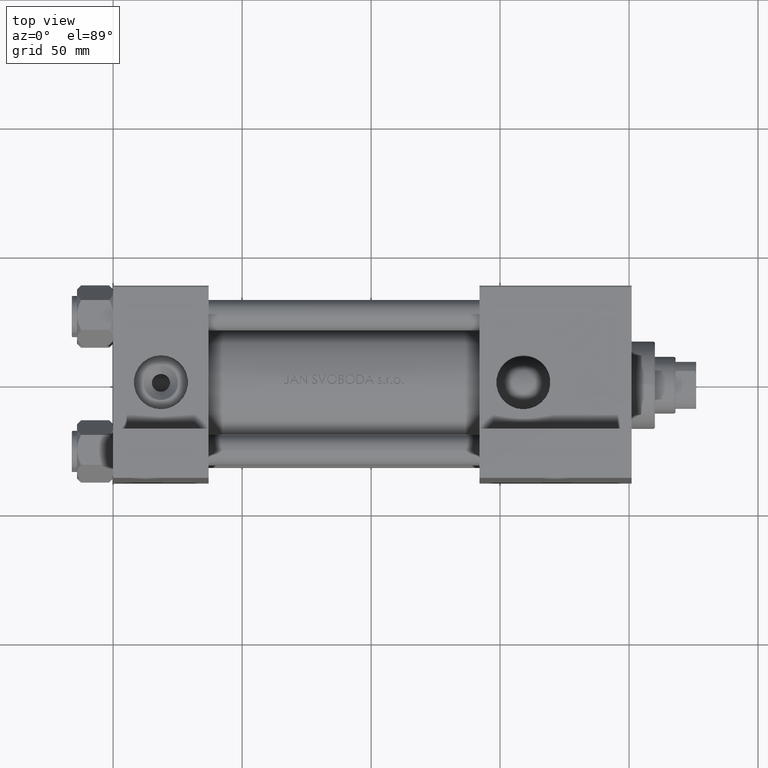
[diagram: clean part render]
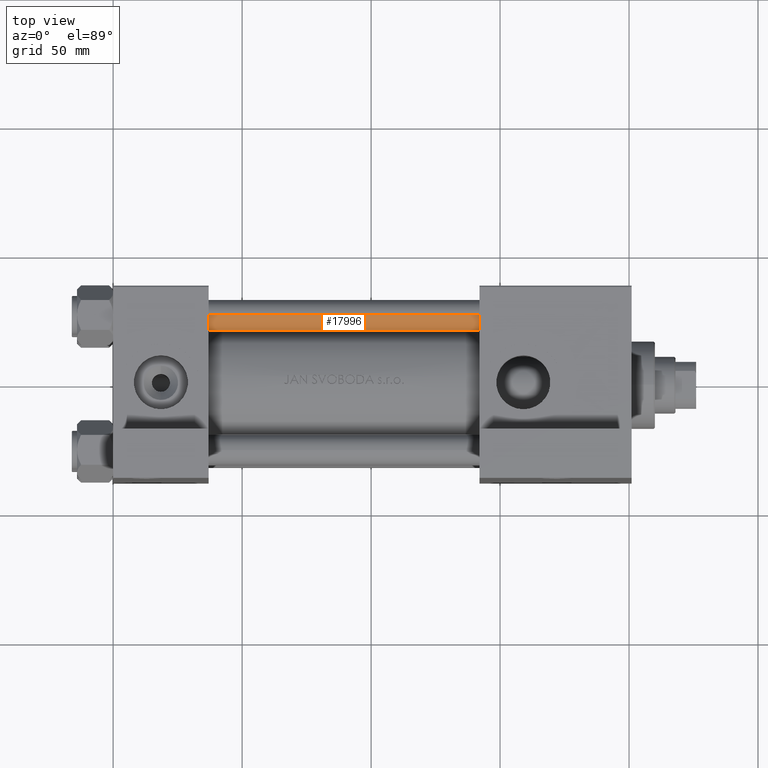
[diagram: same view with one face highlighted and labeled with its STEP entity id]
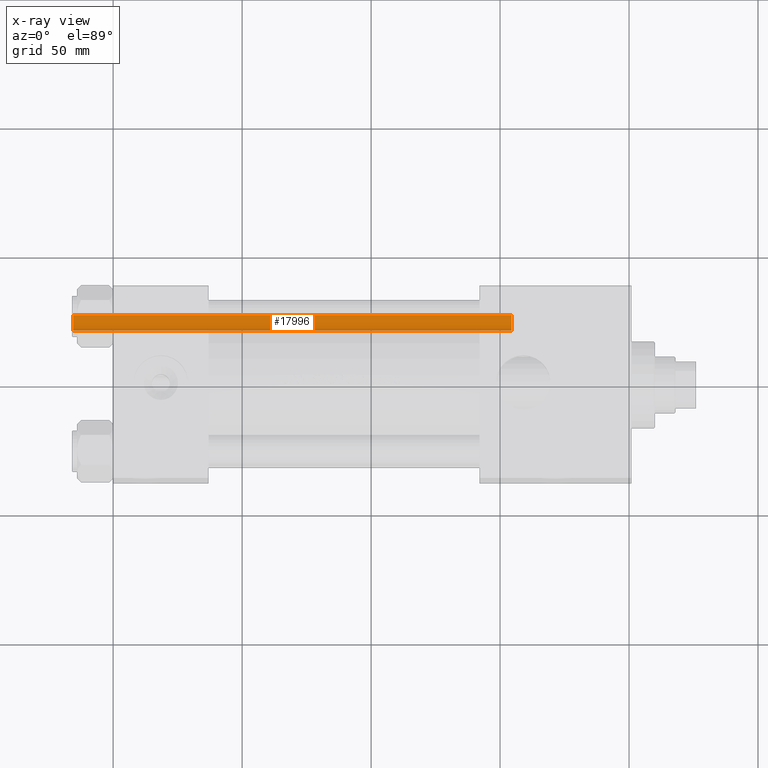
[diagram: x-ray of the same camera — body ghosted, the highlighted face saturated]
A machine part, top view. The second image highlights one B-rep face of the part: STEP entity #17996.
The next image is the same camera in x-ray: the body ghosted, the highlighted face saturated — about 0% of this face is hidden behind the body in this view.
In plain terms, the highlighted cylindrical surface (edge-blend (fillet) strip) has radius 6 mm, axis along (-1, -0, -0).
Its self-contained STEP definition (entity closure, byte-faithful):
#296 = CARTESIAN_POINT ( 'NONE',  ( -6.000000000000000888, 0.000000000000000000, 0.5000000000000281997 ) ) ;
#1954 = VECTOR ( 'NONE', #8274, 1000.000000000000000 ) ;
#2972 = DIRECTION ( 'NONE',  ( 1.000000000000000000, 0.000000000000000000, 0.000000000000000000 ) ) ;
#4338 = VERTEX_POINT ( 'NONE', #11097 ) ;
#4881 = CYLINDRICAL_SURFACE ( 'NONE', #46101, 6.000000000000000888 ) ;
#4886 = ORIENTED_EDGE ( 'NONE', *, *, #24863, .T. ) ;
#5665 = EDGE_CURVE ( 'NONE', #12287, #40471, #27192, .T. ) ;
#8274 = DIRECTION ( 'NONE',  ( -0.000000000000000000, -0.000000000000000000, -1.000000000000000000 ) ) ;
#8770 = CARTESIAN_POINT ( 'NONE',  ( -6.000000000000000888, 0.000000000000000000, 171.0000000000000000 ) ) ;
#10432 = DIRECTION ( 'NONE',  ( -0.000000000000000000, -0.000000000000000000, 1.000000000000000000 ) ) ;
#11097 = CARTESIAN_POINT ( 'NONE',  ( 6.000000000000000888, 7.347880794884120722E-16, 170.5000000000000000 ) ) ;
#11647 = CARTESIAN_POINT ( 'NONE',  ( -6.000000000000000888, 0.000000000000000000, 170.5000000000000000 ) ) ;
#12287 = VERTEX_POINT ( 'NONE', #11647 ) ;
#14169 = CARTESIAN_POINT ( 'NONE',  ( 0.000000000000000000, 0.000000000000000000, 0.5000000000000281997 ) ) ;
#14309 = CARTESIAN_POINT ( 'NONE',  ( 6.000000000000000888, 7.347880794884120722E-16, 171.0000000000000000 ) ) ;
#16074 = CARTESIAN_POINT ( 'NONE',  ( 0.000000000000000000, 0.000000000000000000, 171.0000000000000000 ) ) ;
#16663 = AXIS2_PLACEMENT_3D ( 'NONE', #14169, #10432, #2972 ) ;
#17996 = ADVANCED_FACE ( 'NONE', ( #31517 ), #4881, .T. ) ;
#20045 = DIRECTION ( 'NONE',  ( -1.000000000000000000, 0.000000000000000000, 0.000000000000000000 ) ) ;
#21325 = EDGE_CURVE ( 'NONE', #40471, #25345, #38161, .T. ) ;
#22572 = VECTOR ( 'NONE', #40972, 1000.000000000000000 ) ;
#23909 = AXIS2_PLACEMENT_3D ( 'NONE', #36075, #25604, #47299 ) ;
#24711 = EDGE_LOOP ( 'NONE', ( #41534, #4886, #42911, #25764 ) ) ;
#24863 = EDGE_CURVE ( 'NONE', #4338, #12287, #33495, .T. ) ;
#25345 = VERTEX_POINT ( 'NONE', #42976 ) ;
#25604 = DIRECTION ( 'NONE',  ( 0.000000000000000000, 0.000000000000000000, -1.000000000000000000 ) ) ;
#25764 = ORIENTED_EDGE ( 'NONE', *, *, #21325, .T. ) ;
#27192 = LINE ( 'NONE', #8770, #1954 ) ;
#31517 = FACE_OUTER_BOUND ( 'NONE', #24711, .T. ) ;
#33495 = CIRCLE ( 'NONE', #23909, 6.000000000000000888 ) ;
#34567 = EDGE_CURVE ( 'NONE', #4338, #25345, #48441, .T. ) ;
#36075 = CARTESIAN_POINT ( 'NONE',  ( 0.000000000000000000, 0.000000000000000000, 170.5000000000000000 ) ) ;
#38161 = CIRCLE ( 'NONE', #16663, 6.000000000000000888 ) ;
#38997 = DIRECTION ( 'NONE',  ( -0.000000000000000000, -0.000000000000000000, -1.000000000000000000 ) ) ;
#40471 = VERTEX_POINT ( 'NONE', #296 ) ;
#40972 = DIRECTION ( 'NONE',  ( -0.000000000000000000, -0.000000000000000000, -1.000000000000000000 ) ) ;
#41534 = ORIENTED_EDGE ( 'NONE', *, *, #34567, .F. ) ;
#42911 = ORIENTED_EDGE ( 'NONE', *, *, #5665, .T. ) ;
#42976 = CARTESIAN_POINT ( 'NONE',  ( 6.000000000000000888, 7.347880794884120722E-16, 0.5000000000000281997 ) ) ;
#46101 = AXIS2_PLACEMENT_3D ( 'NONE', #16074, #38997, #20045 ) ;
#47299 = DIRECTION ( 'NONE',  ( 1.000000000000000000, 0.000000000000000000, 0.000000000000000000 ) ) ;
#48441 = LINE ( 'NONE', #14309, #22572 ) ;